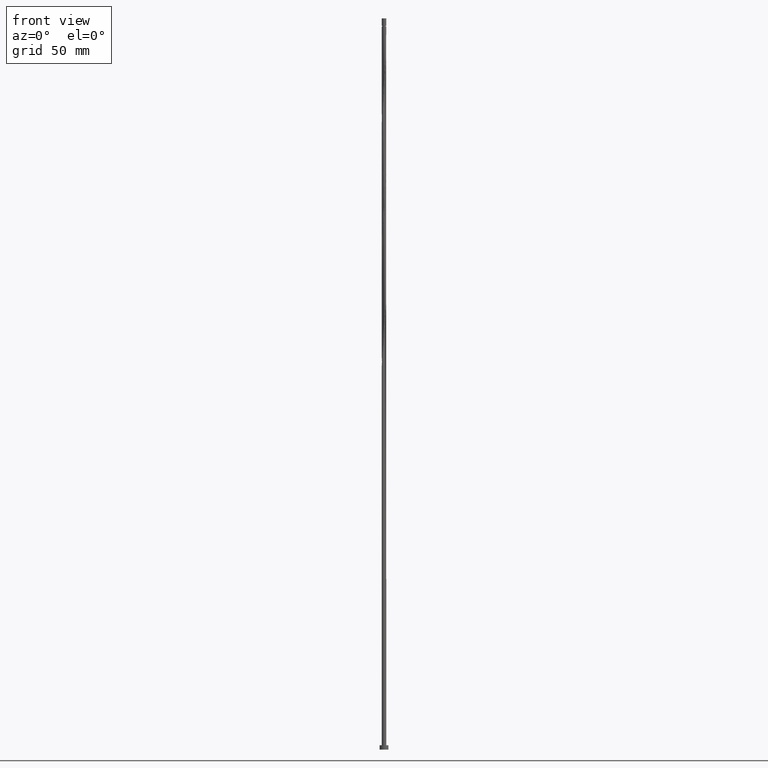
[diagram: clean part render]
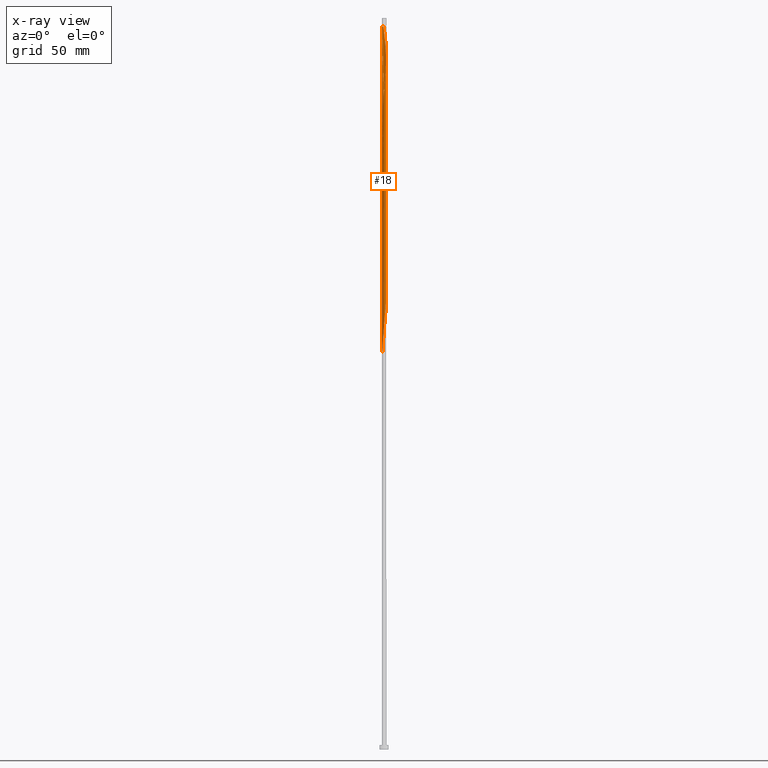
[diagram: x-ray — body ghosted, one internal face saturated and labeled with its STEP entity id]
A machine part, front view, then the same camera in x-ray: the body is ghosted and one INTERNAL B-rep face — a face not visible from any outside direction — is saturated and labeled: STEP entity #18.
In plain terms, the highlighted cylindrical surface (bore or boss wall) has radius 1.5 mm, axis along (-0, -0, -1).
Its self-contained STEP definition (entity closure, byte-faithful):
#6 = CARTESIAN_POINT ( 'NONE',  ( -1.243873350513958087, 0.8383192040512865706, 343.3281776042826436 ) ) ;
#8 = CARTESIAN_POINT ( 'NONE',  ( -1.168927540281820443, -0.9515433031528505170, 360.2552609376160149 ) ) ;
#13 = CARTESIAN_POINT ( 'NONE',  ( -1.500000000000000222, -1.805585256489560181E-15, 267.8600412489462315 ) ) ;
#17 = CARTESIAN_POINT ( 'NONE',  ( -0.7158083721605885685, -1.326440585382229864, 365.4635942709491587 ) ) ;
#18 = ADVANCED_FACE ( 'NONE', ( #340 ), #446, .T. ) ;
#27 = CARTESIAN_POINT ( 'NONE',  ( -1.332103814790743579, -0.7052132151514829417, 357.6510942709493293 ) ) ;
#30 = CARTESIAN_POINT ( 'NONE',  ( 1.388095950770216191, -0.5684976969657283830, 465.7240109376159012 ) ) ;
#33 = CARTESIAN_POINT ( 'NONE',  ( 0.000000000000000000, 0.000000000000000000, 494.3698442709492724 ) ) ;
#35 = DIRECTION ( 'NONE',  ( -0.000000000000000000, -0.000000000000000000, -1.000000000000000000 ) ) ;
#40 = CARTESIAN_POINT ( 'NONE',  ( -0.7052132151514843850, -1.332103814790745577, 443.5885942709493861 ) ) ;
#44 = CARTESIAN_POINT ( 'NONE',  ( 1.168927540281820887, 0.9515433031528494068, 401.9219276042825868 ) ) ;
#74 = CARTESIAN_POINT ( 'NONE',  ( 1.250515677536283343, -0.8283782591521682281, 463.1198442709493293 ) ) ;
#76 = VERTEX_POINT ( 'NONE', #605 ) ;
#87 = CARTESIAN_POINT ( 'NONE',  ( 0.005977936386387828517, -1.499988088044890366, 450.0990109376159580 ) ) ;
#95 = CARTESIAN_POINT ( 'NONE',  ( -0.4432785940670222469, -1.440600687298984717, 284.7344276042825300 ) ) ;
#96 = DIRECTION ( 'NONE',  ( -0.000000000000000000, -0.000000000000000000, -1.000000000000000000 ) ) ;
#99 = CARTESIAN_POINT ( 'NONE',  ( 1.500576863388766391, -0.1417579954241827145, 469.6302609376160149 ) ) ;
#100 = CARTESIAN_POINT ( 'NONE',  ( 1.250515677536282455, 0.8283782591521664518, 317.2865109376160149 ) ) ;
#109 = CARTESIAN_POINT ( 'NONE',  ( 1.472332475069224156, 0.2867700871020775755, 312.0781776042825868 ) ) ;
#121 = CARTESIAN_POINT ( 'NONE',  ( 1.440600687298985161, -0.4432785940670218028, 388.9010942709492156 ) ) ;
#124 = CARTESIAN_POINT ( 'NONE',  ( -1.444088086749684363, -0.4317821787799721589, 271.7135942709492724 ) ) ;
#126 = CARTESIAN_POINT ( 'NONE',  ( 0.9515433031528494068, -1.168927540281820887, 297.7552609376159580 ) ) ;
#150 = CARTESIAN_POINT ( 'NONE',  ( -0.1537138681969573983, 1.499399312701015452, 493.0677609376160717 ) ) ;
#152 = AXIS2_PLACEMENT_3D ( 'NONE', #1357, #1664, #897 ) ;
#154 = CARTESIAN_POINT ( 'NONE',  ( 0.7052132151514829417, -1.332103814790743579, 378.4844276042825868 ) ) ;
#167 = CARTESIAN_POINT ( 'NONE',  ( 0.2984962311319910300, 1.469999999999999307, 327.7031776042825868 ) ) ;
#173 = CARTESIAN_POINT ( 'NONE',  ( -1.444088086749684363, -0.4317821787799721589, 355.0469276042824731 ) ) ;
#174 = CARTESIAN_POINT ( 'NONE',  ( -0.5795434831138059906, -1.383520636340607624, 366.7656776042826436 ) ) ;
#188 = CARTESIAN_POINT ( 'NONE',  ( 0.5684976969657283830, 1.388095950770216191, 486.5573442709492724 ) ) ;
#201 = CARTESIAN_POINT ( 'NONE',  ( 0.2984962311319910300, 1.469999999999999307, 411.0365109376159012 ) ) ;
#203 = LINE ( 'NONE', #1061, #1817 ) ;
#208 = EDGE_CURVE ( 'NONE', #853, #985, #1309, .T. ) ;
#230 = CARTESIAN_POINT ( 'NONE',  ( 0.7158083721605887906, 1.326440585382229864, 407.1302609376159012 ) ) ;
#234 = CARTESIAN_POINT ( 'NONE',  ( -1.056424709399269357, -1.064878788111903063, 439.6823442709492724 ) ) ;
#265 = LINE ( 'NONE', #1320, #691 ) ;
#282 = CARTESIAN_POINT ( 'NONE',  ( 1.326440585382229864, -0.7158083721605885685, 302.9635942709492724 ) ) ;
#283 = CARTESIAN_POINT ( 'NONE',  ( -0.005977936386388374088, -1.499988088044889034, 288.6406776042826436 ) ) ;
#295 = CARTESIAN_POINT ( 'NONE',  ( -0.9515433031528500729, 1.168927540281820443, 422.7552609376160149 ) ) ;
#299 = CARTESIAN_POINT ( 'NONE',  ( 1.499988088044889034, -0.005977936386388479038, 392.8073442709492724 ) ) ;
#306 = CARTESIAN_POINT ( 'NONE',  ( -0.8283782591521668959, 1.250515677536282455, 421.4531776042825868 ) ) ;
#307 = CARTESIAN_POINT ( 'NONE',  ( -1.064878788111902175, -1.056424709399268247, 361.5573442709492724 ) ) ;
#310 = CARTESIAN_POINT ( 'NONE',  ( 0.8283782591521667849, -1.250515677536282455, 379.7865109376159012 ) ) ;
#313 = CARTESIAN_POINT ( 'NONE',  ( -0.1417579954241821316, 1.500576863388764171, 331.6094276042825300 ) ) ;
#321 = CARTESIAN_POINT ( 'NONE',  ( -0.9608300359419839065, -1.161306115645685200, 362.8594276042824731 ) ) ;
#327 = CARTESIAN_POINT ( 'NONE',  ( -1.499999999999999778, -0.1447197223934733323, 269.1360213543621285 ) ) ;
#340 = FACE_OUTER_BOUND ( 'NONE', #1004, .T. ) ;
#352 = CARTESIAN_POINT ( 'NONE',  ( 1.332103814790744911, -0.7052132151514851621, 464.4219276042827005 ) ) ;
#361 = CARTESIAN_POINT ( 'NONE',  ( -0.2867700871020777420, -1.472332475069225932, 447.4948442709492156 ) ) ;
#377 = CARTESIAN_POINT ( 'NONE',  ( -1.168927540281820443, -0.9515433031528505170, 276.9219276042825300 ) ) ;
#382 = CARTESIAN_POINT ( 'NONE',  ( 0.9608300359419841286, 1.161306115645685200, 404.5260942709492724 ) ) ;
#391 = DIRECTION ( 'NONE',  ( -0.000000000000000000, -0.000000000000000000, -1.000000000000000000 ) ) ;
#405 = CARTESIAN_POINT ( 'NONE',  ( 0.8383192040512867926, -1.243873350513959419, 457.9115109376160149 ) ) ;
#436 = VERTEX_POINT ( 'NONE', #1101 ) ;
#442 = CARTESIAN_POINT ( 'NONE',  ( 1.469999999999999307, -0.2984962311319909745, 306.8698442709493293 ) ) ;
#443 = CARTESIAN_POINT ( 'NONE',  ( 1.500000000000000000, 1.954225694378636147E-15, 392.8600412489461746 ) ) ;
#446 = CYLINDRICAL_SURFACE ( 'NONE', #152, 1.500000000000000222 ) ;
#447 = CARTESIAN_POINT ( 'NONE',  ( -1.056424709399268247, 1.064878788111902397, 424.0573442709493293 ) ) ;
#474 = CARTESIAN_POINT ( 'NONE',  ( 0.2867700871020769648, -1.472332475069224378, 374.5781776042827005 ) ) ;
#483 = CARTESIAN_POINT ( 'NONE',  ( -1.388095950770213971, -0.5684976969657272727, 356.3490109376160717 ) ) ;
#492 = CARTESIAN_POINT ( 'NONE',  ( -0.1537138681969592857, -1.499399312701013232, 370.6719276042825300 ) ) ;
#496 = CARTESIAN_POINT ( 'NONE',  ( -1.499399312701015008, -0.1537138681969590637, 430.5677609376160717 ) ) ;
#506 = CARTESIAN_POINT ( 'NONE',  ( 1.499399312701015452, 0.1537138681969595078, 472.2344276042827005 ) ) ;
#511 = CARTESIAN_POINT ( 'NONE',  ( 1.472332475069224156, 0.2867700871020775755, 395.4115109376160717 ) ) ;
#539 = CARTESIAN_POINT ( 'NONE',  ( 0.1417579954241817708, -1.500576863388764171, 289.9427609376159012 ) ) ;
#542 = CARTESIAN_POINT ( 'NONE',  ( 1.161306115645687198, 0.9608300359419851278, 480.0469276042827005 ) ) ;
#543 = VERTEX_POINT ( 'NONE', #1833 ) ;
#550 = CARTESIAN_POINT ( 'NONE',  ( -1.499988088044890366, -0.005977936386388253524, 429.2656776042825868 ) ) ;
#553 = CARTESIAN_POINT ( 'NONE',  ( 0.9608300359419841286, 1.161306115645685200, 321.1927609376159580 ) ) ;
#563 = CARTESIAN_POINT ( 'NONE',  ( 0.7052132151514851621, 1.332103814790744689, 485.2552609376160149 ) ) ;
#574 = CARTESIAN_POINT ( 'NONE',  ( 1.332103814790743579, 0.7052132151514831637, 315.9844276042827005 ) ) ;
#580 = CARTESIAN_POINT ( 'NONE',  ( -0.1537138681969592857, -1.499399312701013232, 287.3385942709492724 ) ) ;
#582 = CARTESIAN_POINT ( 'NONE',  ( -1.500000000000000444, 2.847000236684183887E-16, 434.5267079156129171 ) ) ;
#590 = CARTESIAN_POINT ( 'NONE',  ( -0.5684976969657277168, 1.388095950770213971, 335.5156776042826436 ) ) ;
#593 = CARTESIAN_POINT ( 'NONE',  ( 0.5684976969657272727, -1.388095950770214193, 293.8490109376159580 ) ) ;
#596 = CARTESIAN_POINT ( 'NONE',  ( -1.469999999999999307, 0.2984962311319907524, 431.8698442709494429 ) ) ;
#598 = CARTESIAN_POINT ( 'NONE',  ( 1.469999999999999307, -0.2984962311319909745, 390.2031776042825868 ) ) ;
#600 = CARTESIAN_POINT ( 'NONE',  ( 0.8383192040512872367, 1.243873350513957199, 322.4948442709492724 ) ) ;
#605 = CARTESIAN_POINT ( 'NONE',  ( 1.500000000000000222, 1.836970198721029934E-16, 494.3698442709494429 ) ) ;
#607 = CARTESIAN_POINT ( 'NONE',  ( 1.161306115645685200, -0.9608300359419840175, 383.6927609376160717 ) ) ;
#632 = CARTESIAN_POINT ( 'NONE',  ( -1.469999999999999307, 0.2984962311319907524, 348.5365109376159012 ) ) ;
#643 = CARTESIAN_POINT ( 'NONE',  ( 1.056424709399269357, 1.064878788111902841, 481.3490109376159580 ) ) ;
#655 = CARTESIAN_POINT ( 'NONE',  ( -1.326440585382231641, -0.7158083721605893457, 435.7760942709494429 ) ) ;
#658 = CARTESIAN_POINT ( 'NONE',  ( 1.444088086749684363, 0.4317821787799720479, 396.7135942709493861 ) ) ;
#661 = CARTESIAN_POINT ( 'NONE',  ( -1.500576863388764171, -0.1417579954241818263, 352.4427609376159580 ) ) ;
#662 = CARTESIAN_POINT ( 'NONE',  ( -0.7158083721605885685, -1.326440585382229864, 282.1302609376159580 ) ) ;
#689 = CARTESIAN_POINT ( 'NONE',  ( 1.326440585382231641, 0.7158083721605890126, 477.4427609376161286 ) ) ;
#691 = VECTOR ( 'NONE', #1920, 1000.000000000000000 ) ;
#703 = ORIENTED_EDGE ( 'NONE', *, *, #712, .F. ) ;
#704 = EDGE_CURVE ( 'NONE', #543, #1751, #1841, .T. ) ;
#711 = CARTESIAN_POINT ( 'NONE',  ( 0.9515433031528515162, 1.168927540281822219, 482.6510942709493861 ) ) ;
#712 = EDGE_CURVE ( 'NONE', #985, #436, #1645, .T. ) ;
#722 = CARTESIAN_POINT ( 'NONE',  ( 1.500576863388764171, 0.1417579954241816598, 310.7760942709492156 ) ) ;
#725 = CARTESIAN_POINT ( 'NONE',  ( 1.499999999999999778, -0.002988980061385766718, 392.8336876944288747 ) ) ;
#741 = CARTESIAN_POINT ( 'NONE',  ( 0.8283782591521667849, -1.250515677536282455, 296.4531776042826436 ) ) ;
#746 = ORIENTED_EDGE ( 'NONE', *, *, #979, .F. ) ;
#790 = CARTESIAN_POINT ( 'NONE',  ( 1.444088086749686362, -0.4317821787799731581, 467.0260942709494998 ) ) ;
#798 = CARTESIAN_POINT ( 'NONE',  ( 0.7158083721605890126, -1.326440585382231641, 456.6094276042827005 ) ) ;
#802 = CARTESIAN_POINT ( 'NONE',  ( 0.5795434831138059906, 1.383520636340607624, 408.4323442709493293 ) ) ;
#808 = ORIENTED_EDGE ( 'NONE', *, *, #208, .F. ) ;
#816 = EDGE_CURVE ( 'NONE', #543, #853, #872, .T. ) ;
#827 = CARTESIAN_POINT ( 'NONE',  ( 1.250515677536282455, 0.8283782591521664518, 400.6198442709492724 ) ) ;
#832 = CARTESIAN_POINT ( 'NONE',  ( 0.5795434831138062126, -1.383520636340608956, 455.3073442709491587 ) ) ;
#837 = CARTESIAN_POINT ( 'NONE',  ( -0.2984962311319908079, -1.469999999999999307, 286.0365109376160149 ) ) ;
#840 = CARTESIAN_POINT ( 'NONE',  ( -1.383520636340608956, -0.5795434831138057685, 434.4740109376160149 ) ) ;
#850 = CARTESIAN_POINT ( 'NONE',  ( -1.161306115645687198, -0.9608300359419852388, 438.3802609376161854 ) ) ;
#853 = VERTEX_POINT ( 'NONE', #582 ) ;
#869 = CARTESIAN_POINT ( 'NONE',  ( 1.161306115645685200, -0.9608300359419840175, 300.3594276042824731 ) ) ;
#872 = LINE ( 'NONE', #1765, #1452 ) ;
#891 = CARTESIAN_POINT ( 'NONE',  ( -0.7052132151514831637, 1.332103814790743579, 336.8177609376160149 ) ) ;
#897 = DIRECTION ( 'NONE',  ( -1.000000000000000000, 0.000000000000000000, 0.000000000000000000 ) ) ;
#935 = CARTESIAN_POINT ( 'NONE',  ( 1.499988088044890366, 0.005977936386387720097, 470.9323442709493293 ) ) ;
#945 = CARTESIAN_POINT ( 'NONE',  ( 0.4432785940670224689, -1.440600687298987159, 454.0052609376160717 ) ) ;
#950 = CARTESIAN_POINT ( 'NONE',  ( -1.472332475069224378, -0.2867700871020771314, 353.7448442709493861 ) ) ;
#979 = EDGE_CURVE ( 'NONE', #76, #985, #265, .T. ) ;
#985 = VERTEX_POINT ( 'NONE', #443 ) ;
#1000 = CARTESIAN_POINT ( 'NONE',  ( 0.4317821787799720479, -1.444088086749684363, 292.5469276042825868 ) ) ;
#1003 = CARTESIAN_POINT ( 'NONE',  ( 1.470000000000000862, 0.2984962311319905859, 473.5365109376159580 ) ) ;
#1004 = EDGE_LOOP ( 'NONE', ( #1301, #1481, #1613, #1417, #703, #746, #1140, #808 ) ) ;
#1005 = CARTESIAN_POINT ( 'NONE',  ( -1.500000000000000444, 2.847000236684183887E-16, 434.5267079156129739 ) ) ;
#1012 = CARTESIAN_POINT ( 'NONE',  ( 1.440600687298985161, -0.4432785940670218028, 305.5677609376160149 ) ) ;
#1029 = CARTESIAN_POINT ( 'NONE',  ( 1.056424709399268247, -1.064878788111902175, 382.3906776042825868 ) ) ;
#1058 = CARTESIAN_POINT ( 'NONE',  ( -1.332103814790743579, -0.7052132151514829417, 274.3177609376159580 ) ) ;
#1061 = CARTESIAN_POINT ( 'NONE',  ( -1.500000000000000222, 0.000000000000000000, 500.0000000000000000 ) ) ;
#1065 = CARTESIAN_POINT ( 'NONE',  ( 0.5684976969657272727, -1.388095950770214193, 377.1823442709493293 ) ) ;
#1082 = CARTESIAN_POINT ( 'NONE',  ( -0.9515433031528500729, 1.168927540281820443, 339.4219276042825300 ) ) ;
#1091 = CARTESIAN_POINT ( 'NONE',  ( -1.440600687298984717, 0.4432785940670222469, 347.2344276042825868 ) ) ;
#1094 = CARTESIAN_POINT ( 'NONE',  ( -1.243873350513959419, -0.8383192040512869037, 437.0781776042825868 ) ) ;
#1097 = CARTESIAN_POINT ( 'NONE',  ( -0.4317821787799720479, 1.444088086749684363, 417.5469276042824731 ) ) ;
#1101 = CARTESIAN_POINT ( 'NONE',  ( -1.500000000000000000, -1.805585256489560181E-15, 267.8600412489462315 ) ) ;
#1106 = CARTESIAN_POINT ( 'NONE',  ( 1.383520636340608956, 0.5795434831138062126, 476.1406776042825868 ) ) ;
#1110 = CARTESIAN_POINT ( 'NONE',  ( 1.499999999999998668, 0.1447197223934773291, 394.1360213543620716 ) ) ;
#1120 = CARTESIAN_POINT ( 'NONE',  ( -1.064878788111902175, -1.056424709399268247, 278.2240109376159580 ) ) ;
#1127 = CARTESIAN_POINT ( 'NONE',  ( 1.500000000000000000, 1.954225694378636147E-15, 392.8600412489461178 ) ) ;
#1139 = CARTESIAN_POINT ( 'NONE',  ( -0.9515433031528518493, -1.168927540281821997, 440.9844276042826436 ) ) ;
#1140 = ORIENTED_EDGE ( 'NONE', *, *, #979, .T. ) ;
#1147 = CARTESIAN_POINT ( 'NONE',  ( -0.5684976969657283830, -1.388095950770216191, 444.8906776042825868 ) ) ;
#1149 = CARTESIAN_POINT ( 'NONE',  ( 1.064878788111902175, 1.056424709399268247, 319.8906776042825300 ) ) ;
#1159 = CARTESIAN_POINT ( 'NONE',  ( -0.8283782591521678951, -1.250515677536283121, 442.2865109376159580 ) ) ;
#1170 = CARTESIAN_POINT ( 'NONE',  ( -1.383520636340607624, 0.5795434831138055465, 429.2656776042825868 ) ) ;
#1171 = CARTESIAN_POINT ( 'NONE',  ( 1.499399312701012787, -0.1537138681969600629, 308.1719276042825300 ) ) ;
#1182 = CARTESIAN_POINT ( 'NONE',  ( 1.168927540281820887, 0.9515433031528494068, 318.5885942709493861 ) ) ;
#1191 = CARTESIAN_POINT ( 'NONE',  ( -1.243873350513958087, 0.8383192040512865706, 426.6615109376160149 ) ) ;
#1203 = CARTESIAN_POINT ( 'NONE',  ( 0.9515433031528494068, -1.168927540281820887, 381.0885942709493861 ) ) ;
#1215 = CARTESIAN_POINT ( 'NONE',  ( 0.005977936386388534550, 1.499988088044889034, 330.3073442709493293 ) ) ;
#1225 = CARTESIAN_POINT ( 'NONE',  ( 1.326440585382229864, -0.7158083721605885685, 386.2969276042825300 ) ) ;
#1232 = CARTESIAN_POINT ( 'NONE',  ( -0.8383192040512866816, -1.243873350513958087, 364.1615109376159580 ) ) ;
#1247 = CARTESIAN_POINT ( 'NONE',  ( -0.2867700871020771869, 1.472332475069224378, 416.2448442709493861 ) ) ;
#1258 = CARTESIAN_POINT ( 'NONE',  ( -0.1417579954241825479, -1.500576863388766391, 448.7969276042827573 ) ) ;
#1263 = CARTESIAN_POINT ( 'NONE',  ( -0.1417579954241821316, 1.500576863388764171, 414.9427609376160149 ) ) ;
#1265 = CARTESIAN_POINT ( 'NONE',  ( -1.499988088044889034, 0.005977936386388640368, 351.1406776042825868 ) ) ;
#1266 = CARTESIAN_POINT ( 'NONE',  ( -0.8383192040512866816, -1.243873350513958087, 280.8281776042826436 ) ) ;
#1288 = CARTESIAN_POINT ( 'NONE',  ( 0.005977936386388534550, 1.499988088044889034, 413.6406776042827005 ) ) ;
#1290 = AXIS2_PLACEMENT_3D ( 'NONE', #33, #391, #1609 ) ;
#1300 = CARTESIAN_POINT ( 'NONE',  ( 1.064878788111903063, -1.056424709399269357, 460.5156776042826436 ) ) ;
#1301 = ORIENTED_EDGE ( 'NONE', *, *, #816, .F. ) ;
#1309 =( BOUNDED_CURVE ( )  B_SPLINE_CURVE ( 2, ( #1005, #1324, #1958, #1940, #596, #1464, #1170, #1789, #1191, #1811, #447, #295, #306, #1969, #1720, #1097, #1247, #1263, #1288, #1568, #201, #1898, #802, #230, #1413, #382, #1880, #44, #827, #1589, #1755, #658, #511, #1110, #1127 ),
 .UNSPECIFIED., .F., .T. ) 
 B_SPLINE_CURVE_WITH_KNOTS ( ( 3, 2, 2, 2, 2, 2, 2, 2, 2, 2, 2, 2, 2, 2, 2, 2, 2, 3 ),
 ( 0.4295286902180867616, 0.4296875000000000000, 0.4375000000000000000, 0.4453125000000000000, 0.4531250000000000000, 0.4609375000000000000, 0.4687500000000000000, 0.4765625000000000000, 0.4843750000000000000, 0.4921875000000000000, 0.5000000000000000000, 0.5078125000000000000, 0.5156250000000000000, 0.5234375000000000000, 0.5312500000000000000, 0.5390625000000000000, 0.5468750000000000000, 0.5545286902180867061 ),
 .UNSPECIFIED. ) 
 CURVE ( )  GEOMETRIC_REPRESENTATION_ITEM ( )  RATIONAL_B_SPLINE_CURVE ( ( 0.9089165573360427075, 0.9090019243629476886, 0.9090909090910397339, 0.9047133878839455079, 0.9090909090910397339, 0.9047133878839455079, 0.9090909090910397339, 0.9047133878839455079, 0.9090909090910397339, 0.9047133878839455079, 0.9090909090910397339, 0.9047133878839455079, 0.9090909090910397339, 0.9047133878839455079, 0.9090909090910397339, 0.9047133878839455079, 0.9090909090910397339, 0.9047133878839455079, 0.9090909090910397339, 0.9047133878839455079, 0.9090909090910397339, 0.9047133878839455079, 0.9090909090910397339, 0.9047133878839455079, 0.9090909090910397339, 0.9047133878839455079, 0.9090909090910397339, 0.9047133878839455079, 0.9090909090910397339, 0.9047133878839455079, 0.9090909090910397339, 0.9047133878839455079, 0.9090909090910397339, 0.9048023726120375532, 0.9089165573360427075 ) ) 
 REPRESENTATION_ITEM ( '' )  );
#1320 = CARTESIAN_POINT ( 'NONE',  ( 1.500000000000000222, 1.836970198721029934E-16, 500.0000000000000000 ) ) ;
#1324 = CARTESIAN_POINT ( 'NONE',  ( -1.500000000000000222, 0.002988980061386966279, 434.5003543610955603 ) ) ;
#1325 = CARTESIAN_POINT ( 'NONE',  ( 1.499988088044889034, -0.005977936386388479038, 309.4740109376159580 ) ) ;
#1331 = CARTESIAN_POINT ( 'NONE',  ( 1.056424709399268247, -1.064878788111902175, 299.0573442709493293 ) ) ;
#1338 = EDGE_CURVE ( 'NONE', #1649, #1751, #1730, .T. ) ;
#1342 = CARTESIAN_POINT ( 'NONE',  ( 0.7052132151514829417, -1.332103814790743579, 295.1510942709493293 ) ) ;
#1352 = CARTESIAN_POINT ( 'NONE',  ( 0.7158083721605887906, 1.326440585382229864, 323.7969276042825300 ) ) ;
#1357 = CARTESIAN_POINT ( 'NONE',  ( 0.000000000000000000, 0.000000000000000000, 500.0000000000000000 ) ) ;
#1359 = CARTESIAN_POINT ( 'NONE',  ( 1.243873350513957199, -0.8383192040512871257, 384.9948442709493861 ) ) ;
#1367 = CARTESIAN_POINT ( 'NONE',  ( -0.005977936386387613411, 1.499988088044890366, 491.7656776042825300 ) ) ;
#1379 = CARTESIAN_POINT ( 'NONE',  ( 0.1417579954241817708, -1.500576863388764171, 373.2760942709492156 ) ) ;
#1384 = CARTESIAN_POINT ( 'NONE',  ( -0.2867700871020771869, 1.472332475069224378, 332.9115109376159580 ) ) ;
#1402 = CARTESIAN_POINT ( 'NONE',  ( 0.4317821787799733801, 1.444088086749686139, 487.8594276042825868 ) ) ;
#1413 = CARTESIAN_POINT ( 'NONE',  ( 0.8383192040512872367, 1.243873350513957199, 405.8281776042825868 ) ) ;
#1417 = ORIENTED_EDGE ( 'NONE', *, *, #1974, .T. ) ;
#1444 = CARTESIAN_POINT ( 'NONE',  ( 0.1537138681969590082, -1.499399312701015008, 451.4010942709494429 ) ) ;
#1452 = VECTOR ( 'NONE', #96, 1000.000000000000000 ) ;
#1456 = CARTESIAN_POINT ( 'NONE',  ( -0.4317821787799731026, -1.444088086749686139, 446.1927609376159580 ) ) ;
#1463 = CARTESIAN_POINT ( 'NONE',  ( -1.470000000000000862, -0.2984962311319908079, 431.8698442709492156 ) ) ;
#1464 = CARTESIAN_POINT ( 'NONE',  ( -1.440600687298984717, 0.4432785940670222469, 430.5677609376158443 ) ) ;
#1477 = CARTESIAN_POINT ( 'NONE',  ( 1.444088086749684363, 0.4317821787799720479, 313.3802609376160149 ) ) ;
#1481 = ORIENTED_EDGE ( 'NONE', *, *, #704, .T. ) ;
#1493 = CARTESIAN_POINT ( 'NONE',  ( 1.243873350513957199, -0.8383192040512871257, 301.6615109376159580 ) ) ;
#1510 = CARTESIAN_POINT ( 'NONE',  ( 1.383520636340607624, -0.5795434831138059906, 387.5990109376160717 ) ) ;
#1529 = CARTESIAN_POINT ( 'NONE',  ( -0.4432785940670222469, -1.440600687298984717, 368.0677609376159580 ) ) ;
#1534 = CARTESIAN_POINT ( 'NONE',  ( 0.1537138681969592857, 1.499399312701013232, 329.0052609376159580 ) ) ;
#1540 = CARTESIAN_POINT ( 'NONE',  ( -1.499399312701013232, 0.1537138681969592025, 349.8385942709492724 ) ) ;
#1541 = CARTESIAN_POINT ( 'NONE',  ( 0.4317821787799720479, -1.444088086749684363, 375.8802609376159012 ) ) ;
#1565 = CARTESIAN_POINT ( 'NONE',  ( 1.168927540281821775, -0.9515433031528519603, 461.8177609376160717 ) ) ;
#1568 = CARTESIAN_POINT ( 'NONE',  ( 0.1537138681969592857, 1.499399312701013232, 412.3385942709492724 ) ) ;
#1589 = CARTESIAN_POINT ( 'NONE',  ( 1.332103814790743579, 0.7052132151514831637, 399.3177609376159012 ) ) ;
#1594 = CARTESIAN_POINT ( 'NONE',  ( -1.250515677536282233, -0.8283782591521667849, 275.6198442709493293 ) ) ;
#1601 = CARTESIAN_POINT ( 'NONE',  ( -0.5795434831138059906, -1.383520636340607624, 283.4323442709492156 ) ) ;
#1603 = CARTESIAN_POINT ( 'NONE',  ( -1.500000000000001998, 1.108978815598742881E-16, 429.2129806262856846 ) ) ;
#1609 = DIRECTION ( 'NONE',  ( -1.000000000000000000, 0.000000000000000000, 0.000000000000000000 ) ) ;
#1612 = CARTESIAN_POINT ( 'NONE',  ( 0.2867700871020786302, 1.472332475069225710, 489.1615109376159012 ) ) ;
#1613 = ORIENTED_EDGE ( 'NONE', *, *, #1338, .F. ) ;
#1620 = CARTESIAN_POINT ( 'NONE',  ( 0.2867700871020769648, -1.472332475069224378, 291.2448442709492156 ) ) ;
#1623 = CARTESIAN_POINT ( 'NONE',  ( 1.243873350513959419, 0.8383192040512873477, 478.7448442709492156 ) ) ;
#1631 = CARTESIAN_POINT ( 'NONE',  ( 1.383520636340607624, -0.5795434831138059906, 304.2656776042825868 ) ) ;
#1634 = CARTESIAN_POINT ( 'NONE',  ( -0.2984962311320359940, 1.470000000000370344, 494.3698442709494429 ) ) ;
#1636 = CARTESIAN_POINT ( 'NONE',  ( 1.388095950770214193, 0.5684976969657271617, 314.6823442709493861 ) ) ;
#1645 =( BOUNDED_CURVE ( )  B_SPLINE_CURVE ( 2, ( #1926, #725, #299, #1960, #598, #121, #1510, #1225, #1359, #607, #1029, #1203, #310, #154, #1065, #1541, #474, #1379, #1863, #492, #1831, #1529, #174, #17, #1232, #321, #307, #8, #1853, #27, #483, #173, #950, #661, #1265, #1540, #632, #1091, #1883, #1713, #6, #1693, #1851, #1082, #1704, #891, #590, #1824, #1384, #313, #1215, #1534, #167, #1815, #1804, #1352, #600, #553, #1149, #1182, #100, #574, #1636, #1477, #109, #722, #1325, #1171, #442, #1012, #1631, #282, #1493, #869, #1331, #126, #741, #1342, #593, #1000, #1620, #539, #283, #580, #837, #95, #1601, #662, #1266, #1736, #1120, #377, #1594, #1058, #1785, #124, #1805, #327, #13 ),
 .UNSPECIFIED., .F., .T. ) 
 B_SPLINE_CURVE_WITH_KNOTS ( ( 3, 2, 2, 2, 2, 2, 2, 2, 2, 2, 2, 2, 2, 2, 2, 2, 2, 2, 2, 2, 2, 2, 2, 2, 2, 2, 2, 2, 2, 2, 2, 2, 2, 2, 2, 2, 2, 2, 2, 2, 2, 2, 2, 2, 2, 2, 2, 2, 2, 3 ),
 ( 0.5545286902180867061, 0.5546875000000000000, 0.5625000000000000000, 0.5703125000000000000, 0.5781250000000000000, 0.5859375000000000000, 0.5937500000000000000, 0.6015625000000000000, 0.6093750000000000000, 0.6171875000000000000, 0.6250000000000000000, 0.6328125000000000000, 0.6406250000000000000, 0.6484375000000000000, 0.6562500000000000000, 0.6640625000000000000, 0.6718750000000000000, 0.6796875000000000000, 0.6875000000000000000, 0.6953125000000000000, 0.7031250000000000000, 0.7109375000000000000, 0.7187500000000000000, 0.7265625000000000000, 0.7343750000000000000, 0.7421875000000000000, 0.7500000000000000000, 0.7578125000000000000, 0.7656250000000000000, 0.7734375000000000000, 0.7812500000000000000, 0.7890625000000000000, 0.7968750000000000000, 0.8046875000000000000, 0.8125000000000000000, 0.8203125000000000000, 0.8281250000000000000, 0.8359375000000000000, 0.8437500000000000000, 0.8515625000000000000, 0.8593750000000000000, 0.8671875000000000000, 0.8750000000000000000, 0.8828125000000000000, 0.8906250000000000000, 0.8984375000000000000, 0.9062500000000000000, 0.9140625000000000000, 0.9218750000000000000, 0.9295286902180869282 ),
 .UNSPECIFIED. ) 
 CURVE ( )  GEOMETRIC_REPRESENTATION_ITEM ( )  RATIONAL_B_SPLINE_CURVE ( ( 0.9089165573360427075, 0.9090019243629476886, 0.9090909090910397339, 0.9047133878839455079, 0.9090909090910397339, 0.9047133878839455079, 0.9090909090910397339, 0.9047133878839455079, 0.9090909090910397339, 0.9047133878839455079, 0.9090909090910397339, 0.9047133878839455079, 0.9090909090910397339, 0.9047133878839455079, 0.9090909090910397339, 0.9047133878839455079, 0.9090909090910397339, 0.9047133878839455079, 0.9090909090910397339, 0.9047133878839455079, 0.9090909090910397339, 0.9047133878839455079, 0.9090909090910397339, 0.9047133878839455079, 0.9090909090910397339, 0.9047133878839455079, 0.9090909090910397339, 0.9047133878839455079, 0.9090909090910397339, 0.9047133878839455079, 0.9090909090910397339, 0.9047133878839455079, 0.9090909090910397339, 0.9047133878839455079, 0.9090909090910397339, 0.9047133878839455079, 0.9090909090910397339, 0.9047133878839455079, 0.9090909090910397339, 0.9047133878839455079, 0.9090909090910397339, 0.9047133878839455079, 0.9090909090910397339, 0.9047133878839455079, 0.9090909090910397339, 0.9047133878839455079, 0.9090909090910397339, 0.9047133878839455079, 0.9090909090910397339, 0.9047133878839455079, 0.9090909090910397339, 0.9047133878839455079, 0.9090909090910397339, 0.9047133878839455079, 0.9090909090910397339, 0.9047133878839455079, 0.9090909090910397339, 0.9047133878839455079, 0.9090909090910397339, 0.9047133878839455079, 0.9090909090910397339, 0.9047133878839455079, 0.9090909090910397339, 0.9047133878839455079, 0.9090909090910397339, 0.9047133878839455079, 0.9090909090910397339, 0.9047133878839455079, 0.9090909090910397339, 0.9047133878839455079, 0.9090909090910397339, 0.9047133878839455079, 0.9090909090910397339, 0.9047133878839455079, 0.9090909090910397339, 0.9047133878839455079, 0.9090909090910397339, 0.9047133878839455079, 0.9090909090910397339, 0.9047133878839455079, 0.9090909090910397339, 0.9047133878839455079, 0.9090909090910397339, 0.9047133878839455079, 0.9090909090910397339, 0.9047133878839455079, 0.9090909090910397339, 0.9047133878839455079, 0.9090909090910397339, 0.9047133878839455079, 0.9090909090910397339, 0.9047133878839455079, 0.9090909090910397339, 0.9047133878839455079, 0.9090909090910397339, 0.9047133878839455079, 0.9090909090910397339, 0.9048023726120374421, 0.9089165573360429295 ) ) 
 REPRESENTATION_ITEM ( '' )  );
#1649 = VERTEX_POINT ( 'NONE', #1820 ) ;
#1664 = DIRECTION ( 'NONE',  ( -0.000000000000000000, -0.000000000000000000, -1.000000000000000000 ) ) ;
#1693 = CARTESIAN_POINT ( 'NONE',  ( -1.161306115645685200, 0.9608300359419839065, 342.0260942709492724 ) ) ;
#1704 = CARTESIAN_POINT ( 'NONE',  ( -0.8283782591521668959, 1.250515677536282455, 338.1198442709492724 ) ) ;
#1713 = CARTESIAN_POINT ( 'NONE',  ( -1.326440585382229864, 0.7158083721605885685, 344.6302609376159012 ) ) ;
#1717 = CARTESIAN_POINT ( 'NONE',  ( 0.9608300359419851278, -1.161306115645687198, 459.2135942709493293 ) ) ;
#1720 = CARTESIAN_POINT ( 'NONE',  ( -0.5684976969657277168, 1.388095950770213971, 418.8490109376160149 ) ) ;
#1730 =( BOUNDED_CURVE ( )  B_SPLINE_CURVE ( 2, ( #1603, #1866, #550, #496, #1463, #1922, #840, #655, #1094, #850, #234, #1139, #1159, #40, #1147, #1456, #361, #1258, #87, #1444, #1767, #945, #832, #798, #405, #1717, #1300, #1565, #74, #352, #30, #790, #1876, #99, #935, #506, #1003, #1913, #1106, #689, #1623, #542, #643, #711, #1758, #563, #188, #1402, #1612, #1956, #1367, #150, #1799 ),
 .UNSPECIFIED., .F., .T. ) 
 B_SPLINE_CURVE_WITH_KNOTS ( ( 3, 2, 2, 2, 2, 2, 2, 2, 2, 2, 2, 2, 2, 2, 2, 2, 2, 2, 2, 2, 2, 2, 2, 2, 2, 2, 3 ),
 ( 0.5545286902180869282, 0.5546875000000000000, 0.5625000000000000000, 0.5703125000000000000, 0.5781250000000000000, 0.5859375000000000000, 0.5937500000000000000, 0.6015625000000000000, 0.6093750000000000000, 0.6171875000000000000, 0.6250000000000000000, 0.6328125000000000000, 0.6406250000000000000, 0.6484375000000000000, 0.6562500000000000000, 0.6640624999999998890, 0.6718749999999998890, 0.6796874999999998890, 0.6874999999999998890, 0.6953124999999998890, 0.7031249999999998890, 0.7109374999999998890, 0.7187499999999998890, 0.7265624999999998890, 0.7343749999999998890, 0.7421874999999998890, 0.7499999999999998890 ),
 .UNSPECIFIED. ) 
 CURVE ( )  GEOMETRIC_REPRESENTATION_ITEM ( )  RATIONAL_B_SPLINE_CURVE ( ( 0.9089165573360480366, 0.9090019243629529067, 0.9090909090910448409, 0.9047133878839501708, 0.9090909090910448409, 0.9047133878839501708, 0.9090909090910448409, 0.9047133878839501708, 0.9090909090910448409, 0.9047133878839501708, 0.9090909090910448409, 0.9047133878839501708, 0.9090909090910448409, 0.9047133878839501708, 0.9090909090910448409, 0.9047133878839501708, 0.9090909090910448409, 0.9047133878839501708, 0.9090909090910448409, 0.9047133878839501708, 0.9090909090910448409, 0.9047133878839501708, 0.9090909090910448409, 0.9047133878839501708, 0.9090909090910448409, 0.9047133878839501708, 0.9090909090910448409, 0.9047133878839501708, 0.9090909090910448409, 0.9047133878839501708, 0.9090909090910448409, 0.9047133878839501708, 0.9090909090910448409, 0.9047133878839501708, 0.9090909090910448409, 0.9047133878839501708, 0.9090909090910448409, 0.9047133878839501708, 0.9090909090910448409, 0.9047133878839501708, 0.9090909090910448409, 0.9047133878839501708, 0.9090909090910448409, 0.9047133878839501708, 0.9090909090910448409, 0.9047133878839501708, 0.9090909090910448409, 0.9047133878839501708, 0.9090909090910448409, 0.9047133878839501708, 0.9090909090910448409, 0.9047133878839501708, 0.9090909090910448409 ) ) 
 REPRESENTATION_ITEM ( '' )  );
#1736 = CARTESIAN_POINT ( 'NONE',  ( -0.9608300359419839065, -1.161306115645685200, 279.5260942709492156 ) ) ;
#1751 = VERTEX_POINT ( 'NONE', #1634 ) ;
#1755 = CARTESIAN_POINT ( 'NONE',  ( 1.388095950770214193, 0.5684976969657271617, 398.0156776042826436 ) ) ;
#1758 = CARTESIAN_POINT ( 'NONE',  ( 0.8283782591521684502, 1.250515677536283121, 483.9531776042826436 ) ) ;
#1765 = CARTESIAN_POINT ( 'NONE',  ( -1.500000000000000222, 0.000000000000000000, 500.0000000000000000 ) ) ;
#1767 = CARTESIAN_POINT ( 'NONE',  ( 0.2984962311319906969, -1.470000000000000862, 452.7031776042825300 ) ) ;
#1785 = CARTESIAN_POINT ( 'NONE',  ( -1.388095950770213971, -0.5684976969657272727, 273.0156776042825868 ) ) ;
#1789 = CARTESIAN_POINT ( 'NONE',  ( -1.326440585382229864, 0.7158083721605885685, 427.9635942709492724 ) ) ;
#1799 = CARTESIAN_POINT ( 'NONE',  ( -0.2984962311320359940, 1.470000000000370344, 494.3698442709494429 ) ) ;
#1804 = CARTESIAN_POINT ( 'NONE',  ( 0.5795434831138059906, 1.383520636340607624, 325.0990109376160717 ) ) ;
#1805 = CARTESIAN_POINT ( 'NONE',  ( -1.472332475069224378, -0.2867700871020771314, 270.4115109376159580 ) ) ;
#1811 = CARTESIAN_POINT ( 'NONE',  ( -1.161306115645685200, 0.9608300359419839065, 425.3594276042825868 ) ) ;
#1815 = CARTESIAN_POINT ( 'NONE',  ( 0.4432785940670219138, 1.440600687298985161, 326.4010942709492156 ) ) ;
#1817 = VECTOR ( 'NONE', #35, 1000.000000000000000 ) ;
#1820 = CARTESIAN_POINT ( 'NONE',  ( -1.500000000000001998, 1.108978815598742881E-16, 429.2129806262856846 ) ) ;
#1824 = CARTESIAN_POINT ( 'NONE',  ( -0.4317821787799720479, 1.444088086749684363, 334.2135942709493293 ) ) ;
#1831 = CARTESIAN_POINT ( 'NONE',  ( -0.2984962311319908079, -1.469999999999999307, 369.3698442709493293 ) ) ;
#1833 = CARTESIAN_POINT ( 'NONE',  ( -1.499999999999951816, 0.000000000000000000, 494.3698442709492724 ) ) ;
#1841 = CIRCLE ( 'NONE', #1290, 1.499999999999951816 ) ;
#1851 = CARTESIAN_POINT ( 'NONE',  ( -1.056424709399268247, 1.064878788111902397, 340.7240109376159580 ) ) ;
#1853 = CARTESIAN_POINT ( 'NONE',  ( -1.250515677536282233, -0.8283782591521667849, 358.9531776042826436 ) ) ;
#1863 = CARTESIAN_POINT ( 'NONE',  ( -0.005977936386388374088, -1.499988088044889034, 371.9740109376159580 ) ) ;
#1866 = CARTESIAN_POINT ( 'NONE',  ( -1.500000000000001776, -0.002988980061389708877, 429.2393341808029277 ) ) ;
#1876 = CARTESIAN_POINT ( 'NONE',  ( 1.472332475069225710, -0.2867700871020785747, 468.3281776042824731 ) ) ;
#1880 = CARTESIAN_POINT ( 'NONE',  ( 1.064878788111902175, 1.056424709399268247, 403.2240109376160149 ) ) ;
#1883 = CARTESIAN_POINT ( 'NONE',  ( -1.383520636340607624, 0.5795434831138055465, 345.9323442709493861 ) ) ;
#1898 = CARTESIAN_POINT ( 'NONE',  ( 0.4432785940670219138, 1.440600687298985161, 409.7344276042825300 ) ) ;
#1913 = CARTESIAN_POINT ( 'NONE',  ( 1.440600687298987159, 0.4432785940670218028, 474.8385942709493861 ) ) ;
#1920 = DIRECTION ( 'NONE',  ( -0.000000000000000000, -0.000000000000000000, -1.000000000000000000 ) ) ;
#1922 = CARTESIAN_POINT ( 'NONE',  ( -1.440600687298987159, -0.4432785940670225244, 433.1719276042826436 ) ) ;
#1926 = CARTESIAN_POINT ( 'NONE',  ( 1.500000000000000000, 1.954225694378636147E-15, 392.8600412489461178 ) ) ;
#1940 = CARTESIAN_POINT ( 'NONE',  ( -1.499399312701013232, 0.1537138681969592025, 433.1719276042825300 ) ) ;
#1956 = CARTESIAN_POINT ( 'NONE',  ( 0.1417579954241827978, 1.500576863388766391, 490.4635942709494998 ) ) ;
#1958 = CARTESIAN_POINT ( 'NONE',  ( -1.499988088044889034, 0.005977936386388640368, 434.4740109376160149 ) ) ;
#1960 = CARTESIAN_POINT ( 'NONE',  ( 1.499399312701012787, -0.1537138681969600629, 391.5052609376160149 ) ) ;
#1969 = CARTESIAN_POINT ( 'NONE',  ( -0.7052132151514831637, 1.332103814790743579, 420.1510942709491587 ) ) ;
#1974 = EDGE_CURVE ( 'NONE', #1649, #436, #203, .T. ) ;